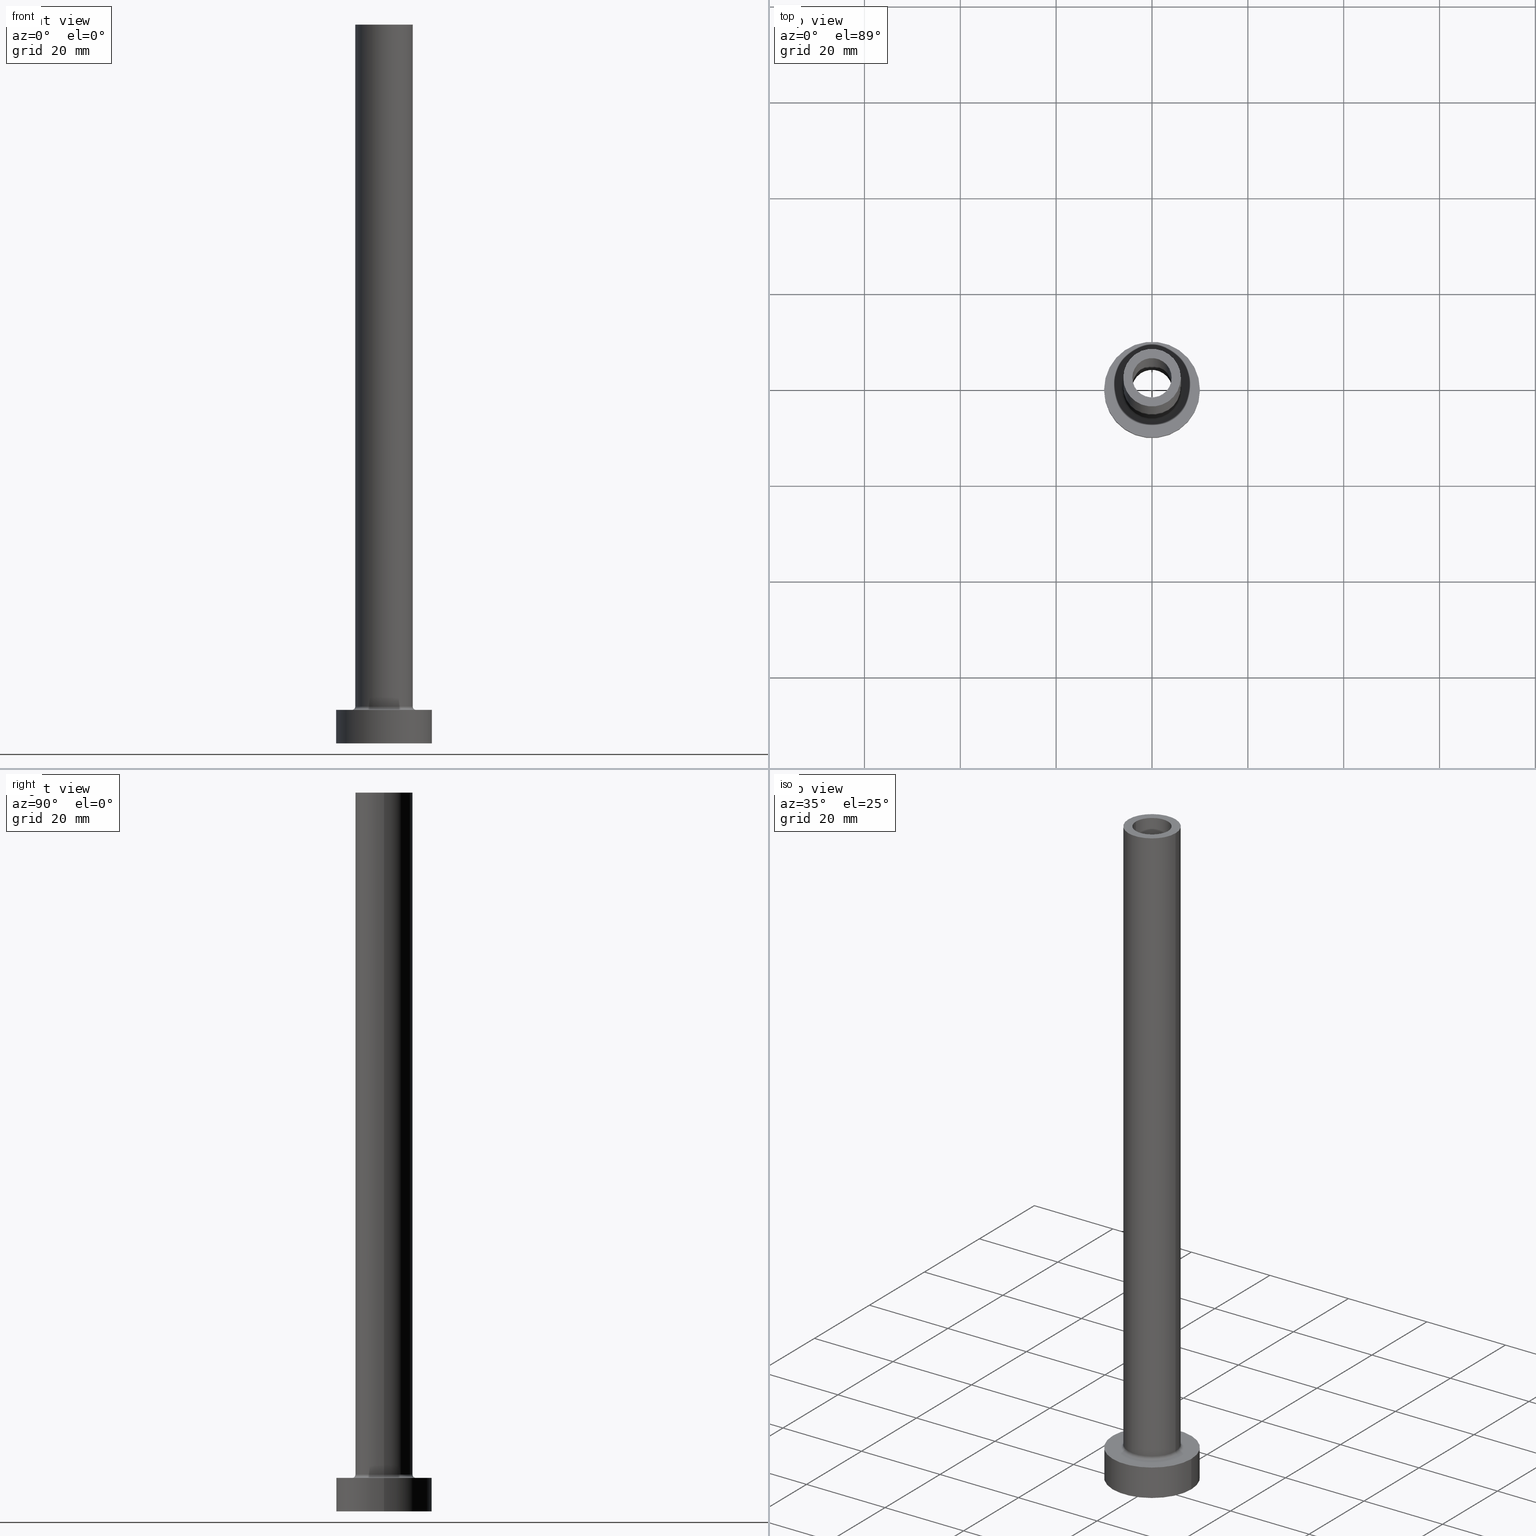
[diagram: canonical four-view strip — front | top / right | iso, engineering-drawing reading convention]
A machine part, canonical four-view strip (front | top / right | iso — engineering-drawing reading convention). The complete STEP part file that produces these views, byte-faithful:
ISO-10303-21;
HEADER;
FILE_DESCRIPTION (( 'STEP AP203' ),
    '1' );
FILE_NAME ('fa8f.STEP',
    '2023-02-13T07:41:35',
    ( '' ),
    ( '' ),
    'SwSTEP 2.0',
    'SolidWorks 2019',
    '' );
FILE_SCHEMA (( 'CONFIG_CONTROL_DESIGN' ));
ENDSEC;

DATA;
#1 = CARTESIAN_POINT ( 'NONE',  ( 10.00000000000000000, 1.224646799147353256E-15, 7.000000000000000000 ) ) ;
#2 = DIRECTION ( 'NONE',  ( -1.000000000000000000, 0.000000000000000000, 0.000000000000000000 ) ) ;
#3 = DIRECTION ( 'NONE',  ( 1.224646799147353207E-16, 1.000000000000000000, -0.000000000000000000 ) ) ;
#4 = AXIS2_PLACEMENT_3D ( 'NONE', #75, #145, #363 ) ;
#5 = DIRECTION ( 'NONE',  ( 1.000000000000000000, 0.000000000000000000, 0.000000000000000000 ) ) ;
#6 = CARTESIAN_POINT ( 'NONE',  ( 4.250000000000000000, 5.204748896376250699E-16, 105.0000000000000000 ) ) ;
#7 = DIRECTION ( 'NONE',  ( 1.000000000000000000, 0.000000000000000000, 0.000000000000000000 ) ) ;
#8 = APPLICATION_CONTEXT ( 'configuration controlled 3d designs of mechanical parts and assemblies' ) ;
#9 = PERSON_AND_ORGANIZATION ( #304, #234 ) ;
#10 = ORIENTED_EDGE ( 'NONE', *, *, #374, .T. ) ;
#11 = COORDINATED_UNIVERSAL_TIME_OFFSET ( 1, 0, .AHEAD. ) ;
#12 = ORIENTED_EDGE ( 'NONE', *, *, #27, .T. ) ;
#13 = ADVANCED_FACE ( 'NONE', ( #167 ), #26, .T. ) ;
#14 = AXIS2_PLACEMENT_3D ( 'NONE', #224, #112, #7 ) ;
#15 = CC_DESIGN_SECURITY_CLASSIFICATION ( #146, ( #418 ) ) ;
#16 = EDGE_LOOP ( 'NONE', ( #342, #253, #54, #29 ) ) ;
#17 = EDGE_LOOP ( 'NONE', ( #98, #190 ) ) ;
#18 = PRODUCT_RELATED_PRODUCT_CATEGORY ( 'detail', '', ( #295 ) ) ;
#19 = EDGE_LOOP ( 'NONE', ( #315, #90, #407, #353 ) ) ;
#20 = CIRCLE ( 'NONE', #383, 4.250000000000000000 ) ;
#21 = APPLICATION_PROTOCOL_DEFINITION ( 'international standard', 'config_control_design', 1994, #8 ) ;
#22 = CIRCLE ( 'NONE', #43, 4.250000000000000000 ) ;
#23 = DIRECTION ( 'NONE',  ( 1.000000000000000000, 0.000000000000000000, 0.000000000000000000 ) ) ;
#24 = CALENDAR_DATE ( 2023, 13, 2 ) ;
#25 = EDGE_LOOP ( 'NONE', ( #222, #219, #170, #88 ) ) ;
#26 = CYLINDRICAL_SURFACE ( 'NONE', #69, 6.000000000000000888 ) ;
#27 = EDGE_CURVE ( 'NONE', #421, #305, #89, .T. ) ;
#28 = SECURITY_CLASSIFICATION_LEVEL ( 'unclassified' ) ;
#29 = ORIENTED_EDGE ( 'NONE', *, *, #451, .F. ) ;
#30 = LOCAL_TIME ( 8, 41, 35.00000000000000000, #240 ) ;
#31 = CARTESIAN_POINT ( 'NONE',  ( 0.000000000000000000, 0.000000000000000000, 105.0000000000000000 ) ) ;
#32 = PLANE ( 'NONE',  #4 ) ;
#33 = APPROVAL ( #166, 'NEUR�EN�' ) ;
#34 = CARTESIAN_POINT ( 'NONE',  ( 0.000000000000000000, 0.000000000000000000, 117.0208152801713197 ) ) ;
#35 = CARTESIAN_POINT ( 'NONE',  ( 0.000000000000000000, 0.000000000000000000, 105.0000000000000000 ) ) ;
#36 = DIRECTION ( 'NONE',  ( -1.000000000000000000, 0.000000000000000000, 0.000000000000000000 ) ) ;
#37 = DIRECTION ( 'NONE',  ( 0.000000000000000000, 0.000000000000000000, 1.000000000000000000 ) ) ;
#38 = CYLINDRICAL_SURFACE ( 'NONE', #257, 10.00000000000000000 ) ;
#39 = DIRECTION ( 'NONE',  ( 1.000000000000000000, 0.000000000000000000, 0.000000000000000000 ) ) ;
#40 = EDGE_CURVE ( 'NONE', #256, #225, #338, .T. ) ;
#41 = DIRECTION ( 'NONE',  ( 0.000000000000000000, 0.000000000000000000, 1.000000000000000000 ) ) ;
#42 = CARTESIAN_POINT ( 'NONE',  ( 10.00000000000000000, 1.224646799147353256E-15, 7.000000000000000000 ) ) ;
#43 = AXIS2_PLACEMENT_3D ( 'NONE', #250, #300, #258 ) ;
#44 = DIRECTION ( 'NONE',  ( 0.000000000000000000, 0.000000000000000000, -1.000000000000000000 ) ) ;
#45 = DIRECTION ( 'NONE',  ( -0.000000000000000000, -0.000000000000000000, -1.000000000000000000 ) ) ;
#46 = EDGE_LOOP ( 'NONE', ( #440, #452 ) ) ;
#47 = EDGE_CURVE ( 'NONE', #122, #294, #133, .T. ) ;
#48 = DESIGN_CONTEXT ( 'detailed design', #8, 'design' ) ;
#49 = EDGE_LOOP ( 'NONE', ( #119, #134 ) ) ;
#50 = APPROVAL_PERSON_ORGANIZATION ( #307, #422, #415 ) ;
#51 = ORIENTED_EDGE ( 'NONE', *, *, #391, .T. ) ;
#52 = ADVANCED_BREP_SHAPE_REPRESENTATION ( 'fa8f', ( #281, #169 ), #247 ) ;
#53 = EDGE_CURVE ( 'NONE', #256, #277, #445, .T. ) ;
#54 = ORIENTED_EDGE ( 'NONE', *, *, #142, .T. ) ;
#55 = PERSON_AND_ORGANIZATION_ROLE ( 'design_owner' ) ;
#56 = ORIENTED_EDGE ( 'NONE', *, *, #410, .F. ) ;
#57 = AXIS2_PLACEMENT_3D ( 'NONE', #388, #206, #454 ) ;
#58 = AXIS2_PLACEMENT_3D ( 'NONE', #214, #364, #39 ) ;
#59 = CIRCLE ( 'NONE', #72, 6.700000000000001066 ) ;
#60 = SHAPE_DEFINITION_REPRESENTATION ( #221, #52 ) ;
#61 = ORIENTED_EDGE ( 'NONE', *, *, #348, .T. ) ;
#62 = EDGE_CURVE ( 'NONE', #294, #121, #20, .T. ) ;
#63 = CARTESIAN_POINT ( 'NONE',  ( 0.000000000000000000, 0.000000000000000000, 0.000000000000000000 ) ) ;
#64 = DIRECTION ( 'NONE',  ( 0.000000000000000000, 0.000000000000000000, -1.000000000000000000 ) ) ;
#65 = AXIS2_PLACEMENT_3D ( 'NONE', #393, #44, #335 ) ;
#66 = CARTESIAN_POINT ( 'NONE',  ( 6.000000000000000888, 7.347880794884120722E-16, 150.0000000000000000 ) ) ;
#67 = CALENDAR_DATE ( 2023, 13, 2 ) ;
#68 = FACE_OUTER_BOUND ( 'NONE', #438, .T. ) ;
#69 = AXIS2_PLACEMENT_3D ( 'NONE', #164, #161, #345 ) ;
#70 = DIRECTION ( 'NONE',  ( -0.000000000000000000, -0.000000000000000000, -1.000000000000000000 ) ) ;
#71 = CARTESIAN_POINT ( 'NONE',  ( 0.000000000000000000, 0.000000000000000000, 0.000000000000000000 ) ) ;
#72 = AXIS2_PLACEMENT_3D ( 'NONE', #107, #254, #429 ) ;
#73 = DIRECTION ( 'NONE',  ( 0.000000000000000000, 0.000000000000000000, 1.000000000000000000 ) ) ;
#74 = APPROVAL_PERSON_ORGANIZATION ( #196, #33, #163 ) ;
#75 = CARTESIAN_POINT ( 'NONE',  ( 0.000000000000000000, 0.000000000000000000, 105.0000000000000000 ) ) ;
#76 = CARTESIAN_POINT ( 'NONE',  ( 0.000000000000000000, 0.000000000000000000, 150.0000000000000000 ) ) ;
#77 =( NAMED_UNIT ( * ) SI_UNIT ( $, .STERADIAN. ) SOLID_ANGLE_UNIT ( ) );
#78 = EDGE_CURVE ( 'NONE', #225, #256, #232, .T. ) ;
#79 = DIRECTION ( 'NONE',  ( -1.000000000000000000, 0.000000000000000000, 0.000000000000000000 ) ) ;
#80 = LINE ( 'NONE', #1, #457 ) ;
#81 = DIRECTION ( 'NONE',  ( 1.000000000000000000, 0.000000000000000000, 0.000000000000000000 ) ) ;
#82 = FACE_OUTER_BOUND ( 'NONE', #25, .T. ) ;
#83 = CIRCLE ( 'NONE', #194, 10.00000000000000000 ) ;
#84 = ORIENTED_EDGE ( 'NONE', *, *, #451, .T. ) ;
#85 = AXIS2_PLACEMENT_3D ( 'NONE', #267, #45, #143 ) ;
#86 = EDGE_CURVE ( 'NONE', #341, #160, #83, .T. ) ;
#87 = EDGE_LOOP ( 'NONE', ( #261, #56 ) ) ;
#88 = ORIENTED_EDGE ( 'NONE', *, *, #265, .F. ) ;
#89 = CIRCLE ( 'NONE', #144, 10.00000000000000000 ) ;
#90 = ORIENTED_EDGE ( 'NONE', *, *, #78, .T. ) ;
#91 = AXIS2_PLACEMENT_3D ( 'NONE', #76, #432, #111 ) ;
#92 = VERTEX_POINT ( 'NONE', #416 ) ;
#93 = ORIENTED_EDGE ( 'NONE', *, *, #311, .T. ) ;
#94 = ORIENTED_EDGE ( 'NONE', *, *, #290, .F. ) ;
#95 = ADVANCED_FACE ( 'NONE', ( #233 ), #357, .F. ) ;
#96 = APPROVAL_DATE_TIME ( #271, #33 ) ;
#97 = ORIENTED_EDGE ( 'NONE', *, *, #368, .F. ) ;
#98 = ORIENTED_EDGE ( 'NONE', *, *, #40, .F. ) ;
#99 = EDGE_LOOP ( 'NONE', ( #51, #413, #116, #193 ) ) ;
#100 = APPROVAL_ROLE ( '' ) ;
#101 = CC_DESIGN_DATE_AND_TIME_ASSIGNMENT ( #279, #420, ( #146 ) ) ;
#102 = PLANE ( 'NONE',  #139 ) ;
#103 = CC_DESIGN_APPROVAL ( #422, ( #129 ) ) ;
#104 = DIRECTION ( 'NONE',  ( 1.000000000000000000, 0.000000000000000000, 0.000000000000000000 ) ) ;
#105 = DIRECTION ( 'NONE',  ( 0.000000000000000000, 0.000000000000000000, 1.000000000000000000 ) ) ;
#106 = CARTESIAN_POINT ( 'NONE',  ( 0.000000000000000000, 0.000000000000000000, 150.0000000000000000 ) ) ;
#107 = CARTESIAN_POINT ( 'NONE',  ( 0.000000000000000000, 0.000000000000000000, 7.000000000000000000 ) ) ;
#108 = AXIS2_PLACEMENT_3D ( 'NONE', #34, #426, #430 ) ;
#109 = FACE_OUTER_BOUND ( 'NONE', #204, .T. ) ;
#110 = CIRCLE ( 'NONE', #372, 6.700000000000001066 ) ;
#111 = DIRECTION ( 'NONE',  ( 1.000000000000000000, 0.000000000000000000, 0.000000000000000000 ) ) ;
#112 = DIRECTION ( 'NONE',  ( 0.000000000000000000, 0.000000000000000000, 1.000000000000000000 ) ) ;
#113 = CARTESIAN_POINT ( 'NONE',  ( 4.250000000000000000, 5.204748896376250699E-16, 0.000000000000000000 ) ) ;
#114 = FACE_BOUND ( 'NONE', #49, .T. ) ;
#115 = MECHANICAL_CONTEXT ( 'NONE', #301, 'mechanical' ) ;
#116 = ORIENTED_EDGE ( 'NONE', *, *, #414, .T. ) ;
#117 = DIRECTION ( 'NONE',  ( 1.000000000000000000, 0.000000000000000000, 0.000000000000000000 ) ) ;
#118 = ADVANCED_FACE ( 'NONE', ( #347 ), #210, .F. ) ;
#119 = ORIENTED_EDGE ( 'NONE', *, *, #62, .F. ) ;
#120 = VECTOR ( 'NONE', #460, 1000.000000000000000 ) ;
#121 = VERTEX_POINT ( 'NONE', #113 ) ;
#122 = VERTEX_POINT ( 'NONE', #251 ) ;
#123 = VECTOR ( 'NONE', #275, 1000.000000000000000 ) ;
#124 = ORIENTED_EDGE ( 'NONE', *, *, #184, .F. ) ;
#125 = ADVANCED_FACE ( 'NONE', ( #461 ), #423, .F. ) ;
#126 = VECTOR ( 'NONE', #283, 1000.000000000000000 ) ;
#127 = DIRECTION ( 'NONE',  ( 0.000000000000000000, 0.000000000000000000, 1.000000000000000000 ) ) ;
#128 = DIRECTION ( 'NONE',  ( 1.000000000000000000, 0.000000000000000000, 0.000000000000000000 ) ) ;
#129 = PRODUCT_DEFINITION ( 'NEZN�M�', '', #418, #48 ) ;
#130 = CALENDAR_DATE ( 2023, 13, 2 ) ;
#131 = DIRECTION ( 'NONE',  ( 1.000000000000000000, 0.000000000000000000, 0.000000000000000000 ) ) ;
#132 = AXIS2_PLACEMENT_3D ( 'NONE', #328, #41, #5 ) ;
#133 = LINE ( 'NONE', #272, #350 ) ;
#134 = ORIENTED_EDGE ( 'NONE', *, *, #414, .F. ) ;
#135 = ADVANCED_FACE ( 'NONE', ( #453 ), #198, .F. ) ;
#136 = FACE_BOUND ( 'NONE', #229, .T. ) ;
#137 = PERSON_AND_ORGANIZATION ( #304, #234 ) ;
#138 = CARTESIAN_POINT ( 'NONE',  ( 0.000000000000000000, 0.000000000000000000, 7.700000000000012612 ) ) ;
#139 = AXIS2_PLACEMENT_3D ( 'NONE', #141, #213, #280 ) ;
#140 = PERSON_AND_ORGANIZATION_ROLE ( 'creator' ) ;
#141 = CARTESIAN_POINT ( 'NONE',  ( 0.000000000000000000, 0.000000000000000000, 7.000000000000000000 ) ) ;
#142 = EDGE_CURVE ( 'NONE', #408, #381, #455, .T. ) ;
#143 = DIRECTION ( 'NONE',  ( -1.000000000000000000, 0.000000000000000000, 0.000000000000000000 ) ) ;
#144 = AXIS2_PLACEMENT_3D ( 'NONE', #384, #419, #23 ) ;
#145 = DIRECTION ( 'NONE',  ( 0.000000000000000000, 0.000000000000000000, 1.000000000000000000 ) ) ;
#146 = SECURITY_CLASSIFICATION ( '', '', #28 ) ;
#147 = DIRECTION ( 'NONE',  ( -1.000000000000000000, 1.224646799147353454E-16, 0.000000000000000000 ) ) ;
#148 = LINE ( 'NONE', #365, #313 ) ;
#149 = LINE ( 'NONE', #322, #120 ) ;
#150 = CARTESIAN_POINT ( 'NONE',  ( 0.000000000000000000, 0.000000000000000000, 150.0000000000000000 ) ) ;
#151 = APPROVAL_STATUS ( 'not_yet_approved' ) ;
#152 = EDGE_LOOP ( 'NONE', ( #375, #97, #159, #10 ) ) ;
#153 = CYLINDRICAL_SURFACE ( 'NONE', #85, 6.000000000000000888 ) ;
#154 = CLOSED_SHELL ( 'NONE', ( #125, #118, #135, #282, #165, #203, #226, #382, #13, #458, #95, #176, #237, #303 ) ) ;
#155 = CALENDAR_DATE ( 2023, 13, 2 ) ;
#156 = VERTEX_POINT ( 'NONE', #285 ) ;
#157 = APPLICATION_PROTOCOL_DEFINITION ( 'international standard', 'config_control_design', 1994, #301 ) ;
#158 = LOCAL_TIME ( 8, 41, 35.00000000000000000, #11 ) ;
#159 = ORIENTED_EDGE ( 'NONE', *, *, #265, .T. ) ;
#160 = VERTEX_POINT ( 'NONE', #400 ) ;
#161 = DIRECTION ( 'NONE',  ( -0.000000000000000000, -0.000000000000000000, -1.000000000000000000 ) ) ;
#162 = AXIS2_PLACEMENT_3D ( 'NONE', #181, #177, #79 ) ;
#163 = APPROVAL_ROLE ( '' ) ;
#164 = CARTESIAN_POINT ( 'NONE',  ( 0.000000000000000000, 0.000000000000000000, 150.0000000000000000 ) ) ;
#165 = ADVANCED_FACE ( 'NONE', ( #109 ), #38, .T. ) ;
#166 = APPROVAL_STATUS ( 'not_yet_approved' ) ;
#167 = FACE_OUTER_BOUND ( 'NONE', #152, .T. ) ;
#168 = ORIENTED_EDGE ( 'NONE', *, *, #334, .F. ) ;
#169 = AXIS2_PLACEMENT_3D ( 'NONE', #405, #183, #292 ) ;
#170 = ORIENTED_EDGE ( 'NONE', *, *, #435, .T. ) ;
#171 = FACE_OUTER_BOUND ( 'NONE', #380, .T. ) ;
#172 = CARTESIAN_POINT ( 'NONE',  ( -4.099999999999999645, 0.000000000000000000, 150.0000000000000000 ) ) ;
#173 = PERSON_AND_ORGANIZATION ( #304, #234 ) ;
#174 = DIRECTION ( 'NONE',  ( -0.000000000000000000, -0.000000000000000000, -1.000000000000000000 ) ) ;
#175 = DIRECTION ( 'NONE',  ( 1.000000000000000000, 0.000000000000000000, 0.000000000000000000 ) ) ;
#176 = ADVANCED_FACE ( 'NONE', ( #68 ), #207, .F. ) ;
#177 = DIRECTION ( 'NONE',  ( 0.000000000000000000, 0.000000000000000000, -1.000000000000000000 ) ) ;
#178 = DIRECTION ( 'NONE',  ( 1.000000000000000000, 0.000000000000000000, 0.000000000000000000 ) ) ;
#179 = LINE ( 'NONE', #212, #450 ) ;
#180 = DIRECTION ( 'NONE',  ( -0.000000000000000000, -0.000000000000000000, -1.000000000000000000 ) ) ;
#181 = CARTESIAN_POINT ( 'NONE',  ( 0.000000000000000000, 0.000000000000000000, 117.0208152801713197 ) ) ;
#182 = CARTESIAN_POINT ( 'NONE',  ( -6.000000000000000888, 0.000000000000000000, 150.0000000000000000 ) ) ;
#183 = DIRECTION ( 'NONE',  ( 0.000000000000000000, 0.000000000000000000, 1.000000000000000000 ) ) ;
#184 = EDGE_CURVE ( 'NONE', #371, #121, #323, .T. ) ;
#185 = DIRECTION ( 'NONE',  ( -0.000000000000000000, -0.000000000000000000, -1.000000000000000000 ) ) ;
#186 = CIRCLE ( 'NONE', #241, 4.250000000000000000 ) ;
#187 = DIRECTION ( 'NONE',  ( 1.000000000000000000, 0.000000000000000000, 0.000000000000000000 ) ) ;
#188 = FACE_BOUND ( 'NONE', #17, .T. ) ;
#189 = ORIENTED_EDGE ( 'NONE', *, *, #86, .T. ) ;
#190 = ORIENTED_EDGE ( 'NONE', *, *, #78, .F. ) ;
#191 = AXIS2_PLACEMENT_3D ( 'NONE', #71, #211, #361 ) ;
#192 = CC_DESIGN_PERSON_AND_ORGANIZATION_ASSIGNMENT ( #137, #316, ( #418 ) ) ;
#193 = ORIENTED_EDGE ( 'NONE', *, *, #47, .F. ) ;
#194 = AXIS2_PLACEMENT_3D ( 'NONE', #376, #378, #269 ) ;
#195 = EDGE_CURVE ( 'NONE', #403, #277, #346, .T. ) ;
#196 = PERSON_AND_ORGANIZATION ( #304, #234 ) ;
#197 = AXIS2_PLACEMENT_3D ( 'NONE', #138, #289, #434 ) ;
#198 = TOROIDAL_SURFACE ( 'NONE', #197, 6.700000000000001066, 0.6999999999999999556 ) ;
#199 = AXIS2_PLACEMENT_3D ( 'NONE', #291, #37, #325 ) ;
#200 = CARTESIAN_POINT ( 'NONE',  ( -4.099999999999999645, 0.000000000000000000, 150.0000000000000000 ) ) ;
#201 = ORIENTED_EDGE ( 'NONE', *, *, #334, .T. ) ;
#202 = DIRECTION ( 'NONE',  ( -0.000000000000000000, -0.000000000000000000, -1.000000000000000000 ) ) ;
#203 = ADVANCED_FACE ( 'NONE', ( #171 ), #358, .T. ) ;
#204 = EDGE_LOOP ( 'NONE', ( #447, #227, #61, #168 ) ) ;
#205 = DATE_AND_TIME ( #385, #30 ) ;
#206 = DIRECTION ( 'NONE',  ( 0.000000000000000000, -1.000000000000000000, 0.000000000000000000 ) ) ;
#207 = CYLINDRICAL_SURFACE ( 'NONE', #162, 4.250000000000000000 ) ;
#208 = EDGE_CURVE ( 'NONE', #156, #408, #317, .T. ) ;
#209 = CIRCLE ( 'NONE', #273, 10.00000000000000000 ) ;
#210 = CYLINDRICAL_SURFACE ( 'NONE', #108, 4.250000000000000000 ) ;
#211 = DIRECTION ( 'NONE',  ( 0.000000000000000000, 0.000000000000000000, 1.000000000000000000 ) ) ;
#212 = CARTESIAN_POINT ( 'NONE',  ( -10.00000000000000000, 0.000000000000000000, 7.000000000000000000 ) ) ;
#213 = DIRECTION ( 'NONE',  ( 0.000000000000000000, 0.000000000000000000, 1.000000000000000000 ) ) ;
#214 = CARTESIAN_POINT ( 'NONE',  ( 0.000000000000000000, 0.000000000000000000, 7.700000000000012612 ) ) ;
#215 = CC_DESIGN_PERSON_AND_ORGANIZATION_ASSIGNMENT ( #314, #276, ( #146 ) ) ;
#216 = CARTESIAN_POINT ( 'NONE',  ( 4.250000000000000000, 5.204748896376250699E-16, 117.0208152801713197 ) ) ;
#217 = CARTESIAN_POINT ( 'NONE',  ( 0.000000000000000000, 0.000000000000000000, 0.000000000000000000 ) ) ;
#218 = DIRECTION ( 'NONE',  ( 0.000000000000000000, 0.000000000000000000, 1.000000000000000000 ) ) ;
#219 = ORIENTED_EDGE ( 'NONE', *, *, #208, .T. ) ;
#220 = AXIS2_PLACEMENT_3D ( 'NONE', #396, #174, #390 ) ;
#221 = PRODUCT_DEFINITION_SHAPE ( 'NONE', 'NONE',  #129 ) ;
#222 = ORIENTED_EDGE ( 'NONE', *, *, #259, .F. ) ;
#223 = UNCERTAINTY_MEASURE_WITH_UNIT (LENGTH_MEASURE( 1.000000000000000082E-05 ), #326, 'distance_accuracy_value', 'NONE');
#224 = CARTESIAN_POINT ( 'NONE',  ( 0.000000000000000000, 0.000000000000000000, 7.700000000000012612 ) ) ;
#225 = VERTEX_POINT ( 'NONE', #321 ) ;
#226 = ADVANCED_FACE ( 'NONE', ( #136, #459 ), #102, .T. ) ;
#227 = ORIENTED_EDGE ( 'NONE', *, *, #290, .T. ) ;
#228 = APPROVAL_PERSON_ORGANIZATION ( #9, #427, #100 ) ;
#229 = EDGE_LOOP ( 'NONE', ( #231, #84 ) ) ;
#230 = PERSON_AND_ORGANIZATION ( #304, #234 ) ;
#231 = ORIENTED_EDGE ( 'NONE', *, *, #297, .T. ) ;
#232 = CIRCLE ( 'NONE', #448, 4.099999999999999645 ) ;
#233 = FACE_OUTER_BOUND ( 'NONE', #16, .T. ) ;
#234 = ORGANIZATION ( 'NEUR�EN�', 'NEUR�EN�', '' ) ;
#235 = EDGE_LOOP ( 'NONE', ( #337, #409, #239, #302 ) ) ;
#236 = CARTESIAN_POINT ( 'NONE',  ( 0.000000000000000000, 0.000000000000000000, 150.0000000000000000 ) ) ;
#237 = ADVANCED_FACE ( 'NONE', ( #428, #355 ), #32, .F. ) ;
#238 = COORDINATED_UNIVERSAL_TIME_OFFSET ( 1, 0, .AHEAD. ) ;
#239 = ORIENTED_EDGE ( 'NONE', *, *, #311, .F. ) ;
#240 = COORDINATED_UNIVERSAL_TIME_OFFSET ( 1, 0, .AHEAD. ) ;
#241 = AXIS2_PLACEMENT_3D ( 'NONE', #397, #431, #178 ) ;
#242 = DIRECTION ( 'NONE',  ( 1.000000000000000000, 0.000000000000000000, 0.000000000000000000 ) ) ;
#243 = DIRECTION ( 'NONE',  ( 0.000000000000000000, 0.000000000000000000, -1.000000000000000000 ) ) ;
#244 = APPROVAL_DATE_TIME ( #260, #422 ) ;
#245 = CARTESIAN_POINT ( 'NONE',  ( -4.250000000000000000, 0.000000000000000000, 0.000000000000000000 ) ) ;
#246 = PLANE ( 'NONE',  #379 ) ;
#247 =( GEOMETRIC_REPRESENTATION_CONTEXT ( 3 ) GLOBAL_UNCERTAINTY_ASSIGNED_CONTEXT ( ( #223 ) ) GLOBAL_UNIT_ASSIGNED_CONTEXT ( ( #326, #339, #77 ) ) REPRESENTATION_CONTEXT ( 'NONE', 'WORKASPACE' ) );
#248 = DIRECTION ( 'NONE',  ( -0.000000000000000000, -0.000000000000000000, -1.000000000000000000 ) ) ;
#249 = DIRECTION ( 'NONE',  ( -0.000000000000000000, -0.000000000000000000, -1.000000000000000000 ) ) ;
#250 = CARTESIAN_POINT ( 'NONE',  ( 0.000000000000000000, 0.000000000000000000, 0.000000000000000000 ) ) ;
#251 = CARTESIAN_POINT ( 'NONE',  ( -4.250000000000000000, 0.000000000000000000, 105.0000000000000000 ) ) ;
#252 = FACE_OUTER_BOUND ( 'NONE', #46, .T. ) ;
#253 = ORIENTED_EDGE ( 'NONE', *, *, #435, .F. ) ;
#254 = DIRECTION ( 'NONE',  ( -0.000000000000000000, -0.000000000000000000, -1.000000000000000000 ) ) ;
#255 = CIRCLE ( 'NONE', #91, 6.000000000000000888 ) ;
#256 = VERTEX_POINT ( 'NONE', #172 ) ;
#257 = AXIS2_PLACEMENT_3D ( 'NONE', #360, #248, #36 ) ;
#258 = DIRECTION ( 'NONE',  ( 1.000000000000000000, 0.000000000000000000, 0.000000000000000000 ) ) ;
#259 = EDGE_CURVE ( 'NONE', #156, #349, #264, .T. ) ;
#260 = DATE_AND_TIME ( #155, #158 ) ;
#261 = ORIENTED_EDGE ( 'NONE', *, *, #391, .F. ) ;
#262 = EDGE_LOOP ( 'NONE', ( #93, #369 ) ) ;
#263 = VERTEX_POINT ( 'NONE', #330 ) ;
#264 = CIRCLE ( 'NONE', #132, 6.000000000000000888 ) ;
#265 = EDGE_CURVE ( 'NONE', #349, #263, #148, .T. ) ;
#266 = ORIENTED_EDGE ( 'NONE', *, *, #142, .F. ) ;
#267 = CARTESIAN_POINT ( 'NONE',  ( 0.000000000000000000, 0.000000000000000000, 150.0000000000000000 ) ) ;
#268 = APPROVAL_STATUS ( 'not_yet_approved' ) ;
#269 = DIRECTION ( 'NONE',  ( 1.000000000000000000, 0.000000000000000000, 0.000000000000000000 ) ) ;
#270 = AXIS2_PLACEMENT_3D ( 'NONE', #286, #387, #104 ) ;
#271 = DATE_AND_TIME ( #130, #425 ) ;
#272 = CARTESIAN_POINT ( 'NONE',  ( -4.250000000000000000, 0.000000000000000000, 117.0208152801713197 ) ) ;
#273 = AXIS2_PLACEMENT_3D ( 'NONE', #217, #398, #187 ) ;
#274 = CC_DESIGN_PERSON_AND_ORGANIZATION_ASSIGNMENT ( #392, #284, ( #129 ) ) ;
#275 = DIRECTION ( 'NONE',  ( 0.000000000000000000, 0.000000000000000000, -1.000000000000000000 ) ) ;
#276 = PERSON_AND_ORGANIZATION_ROLE ( 'classification_officer' ) ;
#277 = VERTEX_POINT ( 'NONE', #402 ) ;
#278 = COORDINATED_UNIVERSAL_TIME_OFFSET ( 1, 0, .AHEAD. ) ;
#279 = DATE_AND_TIME ( #24, #412 ) ;
#280 = DIRECTION ( 'NONE',  ( 1.000000000000000000, 0.000000000000000000, -0.000000000000000000 ) ) ;
#281 = MANIFOLD_SOLID_BREP ( 'Odebrat vysunut�m4', #154 ) ;
#282 = ADVANCED_FACE ( 'NONE', ( #82 ), #153, .T. ) ;
#283 = DIRECTION ( 'NONE',  ( 0.000000000000000000, 0.000000000000000000, -1.000000000000000000 ) ) ;
#284 = PERSON_AND_ORGANIZATION_ROLE ( 'creator' ) ;
#285 = CARTESIAN_POINT ( 'NONE',  ( 6.000000000000000888, 7.347880794884120722E-16, 150.0000000000000000 ) ) ;
#286 = CARTESIAN_POINT ( 'NONE',  ( 0.000000000000000000, 0.000000000000000000, 7.700000000000012612 ) ) ;
#287 = DIRECTION ( 'NONE',  ( -0.000000000000000000, -0.000000000000000000, -1.000000000000000000 ) ) ;
#288 = CC_DESIGN_APPROVAL ( #427, ( #418 ) ) ;
#289 = DIRECTION ( 'NONE',  ( 0.000000000000000000, 0.000000000000000000, 1.000000000000000000 ) ) ;
#290 = EDGE_CURVE ( 'NONE', #341, #305, #80, .T. ) ;
#291 = CARTESIAN_POINT ( 'NONE',  ( 0.000000000000000000, 0.000000000000000000, 7.000000000000000000 ) ) ;
#292 = DIRECTION ( 'NONE',  ( 1.000000000000000000, 0.000000000000000000, 0.000000000000000000 ) ) ;
#293 = EDGE_LOOP ( 'NONE', ( #333, #449, #373, #266 ) ) ;
#294 = VERTEX_POINT ( 'NONE', #245 ) ;
#295 = PRODUCT ( 'fa8f', 'fa8f', '', ( #115 ) ) ;
#296 = CYLINDRICAL_SURFACE ( 'NONE', #65, 4.099999999999999645 ) ;
#297 = EDGE_CURVE ( 'NONE', #381, #92, #59, .T. ) ;
#298 = CIRCLE ( 'NONE', #306, 0.7000000000000000666 ) ;
#299 = ORIENTED_EDGE ( 'NONE', *, *, #368, .T. ) ;
#300 = DIRECTION ( 'NONE',  ( -0.000000000000000000, -0.000000000000000000, -1.000000000000000000 ) ) ;
#301 = APPLICATION_CONTEXT ( 'configuration controlled 3d designs of mechanical parts and assemblies' ) ;
#302 = ORIENTED_EDGE ( 'NONE', *, *, #53, .F. ) ;
#303 = ADVANCED_FACE ( 'NONE', ( #404 ), #296, .F. ) ;
#304 = PERSON ( 'NEUR�EN�', 'NEUR�EN�', 'NEUR�EN�', ('NEUR�EN�'), ('NEUR�EN�'), ('NEUR�EN�') ) ;
#305 = VERTEX_POINT ( 'NONE', #359 ) ;
#306 = AXIS2_PLACEMENT_3D ( 'NONE', #329, #3, #147 ) ;
#307 = PERSON_AND_ORGANIZATION ( #304, #234 ) ;
#308 = ORIENTED_EDGE ( 'NONE', *, *, #362, .F. ) ;
#309 = COORDINATED_UNIVERSAL_TIME_OFFSET ( 1, 0, .AHEAD. ) ;
#310 = EDGE_LOOP ( 'NONE', ( #299, #442 ) ) ;
#311 = EDGE_CURVE ( 'NONE', #277, #403, #406, .T. ) ;
#312 = DIRECTION ( 'NONE',  ( 0.000000000000000000, 0.000000000000000000, 1.000000000000000000 ) ) ;
#313 = VECTOR ( 'NONE', #185, 1000.000000000000000 ) ;
#314 = PERSON_AND_ORGANIZATION ( #304, #234 ) ;
#315 = ORIENTED_EDGE ( 'NONE', *, *, #327, .F. ) ;
#316 = PERSON_AND_ORGANIZATION_ROLE ( 'design_supplier' ) ;
#317 = LINE ( 'NONE', #66, #386 ) ;
#318 = DIRECTION ( 'NONE',  ( 0.000000000000000000, 0.000000000000000000, 1.000000000000000000 ) ) ;
#319 = CARTESIAN_POINT ( 'NONE',  ( 6.000000000000000888, 7.347880794884120722E-16, 7.700000000000012612 ) ) ;
#320 = AXIS2_PLACEMENT_3D ( 'NONE', #389, #105, #81 ) ;
#321 = CARTESIAN_POINT ( 'NONE',  ( 4.099999999999999645, 5.021051876504146399E-16, 150.0000000000000000 ) ) ;
#322 = CARTESIAN_POINT ( 'NONE',  ( 4.099999999999999645, 5.021051876504146399E-16, 150.0000000000000000 ) ) ;
#323 = LINE ( 'NONE', #216, #126 ) ;
#324 = CARTESIAN_POINT ( 'NONE',  ( 4.099999999999999645, 5.021051876504146399E-16, 105.0000000000000000 ) ) ;
#325 = DIRECTION ( 'NONE',  ( 1.000000000000000000, 0.000000000000000000, 0.000000000000000000 ) ) ;
#326 =( LENGTH_UNIT ( ) NAMED_UNIT ( * ) SI_UNIT ( .MILLI., .METRE. ) );
#327 = EDGE_CURVE ( 'NONE', #225, #403, #149, .T. ) ;
#328 = CARTESIAN_POINT ( 'NONE',  ( 0.000000000000000000, 0.000000000000000000, 150.0000000000000000 ) ) ;
#329 = CARTESIAN_POINT ( 'NONE',  ( -6.700000000000001066, 8.205133554287267548E-16, 7.700000000000012612 ) ) ;
#330 = CARTESIAN_POINT ( 'NONE',  ( -6.000000000000000888, 0.000000000000000000, 7.700000000000012612 ) ) ;
#331 = CARTESIAN_POINT ( 'NONE',  ( -10.00000000000000000, 0.000000000000000000, 0.000000000000000000 ) ) ;
#332 = DATE_TIME_ROLE ( 'creation_date' ) ;
#333 = ORIENTED_EDGE ( 'NONE', *, *, #374, .F. ) ;
#334 = EDGE_CURVE ( 'NONE', #160, #421, #179, .T. ) ;
#335 = DIRECTION ( 'NONE',  ( -1.000000000000000000, 0.000000000000000000, 0.000000000000000000 ) ) ;
#336 = FACE_OUTER_BOUND ( 'NONE', #310, .T. ) ;
#337 = ORIENTED_EDGE ( 'NONE', *, *, #40, .T. ) ;
#338 = CIRCLE ( 'NONE', #411, 4.099999999999999645 ) ;
#339 =( NAMED_UNIT ( * ) PLANE_ANGLE_UNIT ( ) SI_UNIT ( $, .RADIAN. ) );
#340 = CIRCLE ( 'NONE', #199, 10.00000000000000000 ) ;
#341 = VERTEX_POINT ( 'NONE', #42 ) ;
#342 = ORIENTED_EDGE ( 'NONE', *, *, #377, .F. ) ;
#343 = CC_DESIGN_DATE_AND_TIME_ASSIGNMENT ( #356, #332, ( #129 ) ) ;
#344 = ORIENTED_EDGE ( 'NONE', *, *, #410, .T. ) ;
#345 = DIRECTION ( 'NONE',  ( -1.000000000000000000, 0.000000000000000000, 0.000000000000000000 ) ) ;
#346 = CIRCLE ( 'NONE', #444, 4.099999999999999645 ) ;
#347 = FACE_OUTER_BOUND ( 'NONE', #99, .T. ) ;
#348 = EDGE_CURVE ( 'NONE', #305, #421, #209, .T. ) ;
#349 = VERTEX_POINT ( 'NONE', #182 ) ;
#350 = VECTOR ( 'NONE', #64, 1000.000000000000000 ) ;
#351 = DIRECTION ( 'NONE',  ( 1.000000000000000000, 0.000000000000000000, 0.000000000000000000 ) ) ;
#352 = CC_DESIGN_PERSON_AND_ORGANIZATION_ASSIGNMENT ( #173, #140, ( #418 ) ) ;
#353 = ORIENTED_EDGE ( 'NONE', *, *, #195, .F. ) ;
#354 = APPROVAL_DATE_TIME ( #205, #427 ) ;
#355 = FACE_OUTER_BOUND ( 'NONE', #87, .T. ) ;
#356 = DATE_AND_TIME ( #67, #424 ) ;
#357 = TOROIDAL_SURFACE ( 'NONE', #270, 6.700000000000001066, 0.6999999999999999556 ) ;
#358 = CYLINDRICAL_SURFACE ( 'NONE', #220, 10.00000000000000000 ) ;
#359 = CARTESIAN_POINT ( 'NONE',  ( 10.00000000000000000, 1.224646799147353256E-15, 0.000000000000000000 ) ) ;
#360 = CARTESIAN_POINT ( 'NONE',  ( 0.000000000000000000, 0.000000000000000000, 7.000000000000000000 ) ) ;
#361 = DIRECTION ( 'NONE',  ( 1.000000000000000000, 0.000000000000000000, -0.000000000000000000 ) ) ;
#362 = EDGE_CURVE ( 'NONE', #160, #341, #340, .T. ) ;
#363 = DIRECTION ( 'NONE',  ( 1.000000000000000000, 0.000000000000000000, -0.000000000000000000 ) ) ;
#364 = DIRECTION ( 'NONE',  ( 0.000000000000000000, 0.000000000000000000, 1.000000000000000000 ) ) ;
#365 = CARTESIAN_POINT ( 'NONE',  ( -6.000000000000000888, 0.000000000000000000, 150.0000000000000000 ) ) ;
#366 = DIRECTION ( 'NONE',  ( 1.000000000000000000, 0.000000000000000000, -0.000000000000000000 ) ) ;
#367 = CIRCLE ( 'NONE', #320, 4.250000000000000000 ) ;
#368 = EDGE_CURVE ( 'NONE', #349, #156, #255, .T. ) ;
#369 = ORIENTED_EDGE ( 'NONE', *, *, #195, .T. ) ;
#370 = ORIENTED_EDGE ( 'NONE', *, *, #62, .T. ) ;
#371 = VERTEX_POINT ( 'NONE', #6 ) ;
#372 = AXIS2_PLACEMENT_3D ( 'NONE', #399, #180, #117 ) ;
#373 = ORIENTED_EDGE ( 'NONE', *, *, #297, .F. ) ;
#374 = EDGE_CURVE ( 'NONE', #263, #408, #394, .T. ) ;
#375 = ORIENTED_EDGE ( 'NONE', *, *, #208, .F. ) ;
#376 = CARTESIAN_POINT ( 'NONE',  ( 0.000000000000000000, 0.000000000000000000, 7.000000000000000000 ) ) ;
#377 = EDGE_CURVE ( 'NONE', #263, #92, #298, .T. ) ;
#378 = DIRECTION ( 'NONE',  ( 0.000000000000000000, 0.000000000000000000, 1.000000000000000000 ) ) ;
#379 = AXIS2_PLACEMENT_3D ( 'NONE', #150, #218, #366 ) ;
#380 = EDGE_LOOP ( 'NONE', ( #94, #308, #201, #12 ) ) ;
#381 = VERTEX_POINT ( 'NONE', #436 ) ;
#382 = ADVANCED_FACE ( 'NONE', ( #114, #252 ), #401, .F. ) ;
#383 = AXIS2_PLACEMENT_3D ( 'NONE', #63, #202, #351 ) ;
#384 = CARTESIAN_POINT ( 'NONE',  ( 0.000000000000000000, 0.000000000000000000, 0.000000000000000000 ) ) ;
#385 = CALENDAR_DATE ( 2023, 13, 2 ) ;
#386 = VECTOR ( 'NONE', #70, 1000.000000000000000 ) ;
#387 = DIRECTION ( 'NONE',  ( 0.000000000000000000, 0.000000000000000000, 1.000000000000000000 ) ) ;
#388 = CARTESIAN_POINT ( 'NONE',  ( 6.700000000000001066, 0.000000000000000000, 7.700000000000012612 ) ) ;
#389 = CARTESIAN_POINT ( 'NONE',  ( 0.000000000000000000, 0.000000000000000000, 105.0000000000000000 ) ) ;
#390 = DIRECTION ( 'NONE',  ( -1.000000000000000000, 0.000000000000000000, 0.000000000000000000 ) ) ;
#391 = EDGE_CURVE ( 'NONE', #122, #371, #186, .T. ) ;
#392 = PERSON_AND_ORGANIZATION ( #304, #234 ) ;
#393 = CARTESIAN_POINT ( 'NONE',  ( 0.000000000000000000, 0.000000000000000000, 150.0000000000000000 ) ) ;
#394 = CIRCLE ( 'NONE', #58, 6.000000000000000888 ) ;
#395 = CC_DESIGN_APPROVAL ( #33, ( #146 ) ) ;
#396 = CARTESIAN_POINT ( 'NONE',  ( 0.000000000000000000, 0.000000000000000000, 7.000000000000000000 ) ) ;
#397 = CARTESIAN_POINT ( 'NONE',  ( 0.000000000000000000, 0.000000000000000000, 105.0000000000000000 ) ) ;
#398 = DIRECTION ( 'NONE',  ( 0.000000000000000000, 0.000000000000000000, 1.000000000000000000 ) ) ;
#399 = CARTESIAN_POINT ( 'NONE',  ( 0.000000000000000000, 0.000000000000000000, 7.000000000000000000 ) ) ;
#400 = CARTESIAN_POINT ( 'NONE',  ( -10.00000000000000000, 0.000000000000000000, 7.000000000000000000 ) ) ;
#401 = PLANE ( 'NONE',  #191 ) ;
#402 = CARTESIAN_POINT ( 'NONE',  ( -4.099999999999999645, 0.000000000000000000, 105.0000000000000000 ) ) ;
#403 = VERTEX_POINT ( 'NONE', #324 ) ;
#404 = FACE_OUTER_BOUND ( 'NONE', #19, .T. ) ;
#405 = CARTESIAN_POINT ( 'NONE',  ( 0.000000000000000000, 0.000000000000000000, 0.000000000000000000 ) ) ;
#406 = CIRCLE ( 'NONE', #433, 4.099999999999999645 ) ;
#407 = ORIENTED_EDGE ( 'NONE', *, *, #53, .T. ) ;
#408 = VERTEX_POINT ( 'NONE', #319 ) ;
#409 = ORIENTED_EDGE ( 'NONE', *, *, #327, .T. ) ;
#410 = EDGE_CURVE ( 'NONE', #371, #122, #367, .T. ) ;
#411 = AXIS2_PLACEMENT_3D ( 'NONE', #236, #312, #131 ) ;
#412 = LOCAL_TIME ( 8, 41, 35.00000000000000000, #238 ) ;
#413 = ORIENTED_EDGE ( 'NONE', *, *, #184, .T. ) ;
#414 = EDGE_CURVE ( 'NONE', #121, #294, #22, .T. ) ;
#415 = APPROVAL_ROLE ( '' ) ;
#416 = CARTESIAN_POINT ( 'NONE',  ( -6.700000000000001066, 8.205133554287267548E-16, 7.000000000000006217 ) ) ;
#417 = ORIENTED_EDGE ( 'NONE', *, *, #362, .T. ) ;
#418 = PRODUCT_DEFINITION_FORMATION_WITH_SPECIFIED_SOURCE ( 'LIBOVOLN�', '', #295, .NOT_KNOWN. ) ;
#419 = DIRECTION ( 'NONE',  ( 0.000000000000000000, 0.000000000000000000, 1.000000000000000000 ) ) ;
#420 = DATE_TIME_ROLE ( 'classification_date' ) ;
#421 = VERTEX_POINT ( 'NONE', #331 ) ;
#422 = APPROVAL ( #268, 'NEUR�EN�' ) ;
#423 = CYLINDRICAL_SURFACE ( 'NONE', #456, 4.099999999999999645 ) ;
#424 = LOCAL_TIME ( 8, 41, 35.00000000000000000, #278 ) ;
#425 = LOCAL_TIME ( 8, 41, 35.00000000000000000, #309 ) ;
#426 = DIRECTION ( 'NONE',  ( 0.000000000000000000, 0.000000000000000000, -1.000000000000000000 ) ) ;
#427 = APPROVAL ( #151, 'NEUR�EN�' ) ;
#428 = FACE_BOUND ( 'NONE', #262, .T. ) ;
#429 = DIRECTION ( 'NONE',  ( 1.000000000000000000, 0.000000000000000000, 0.000000000000000000 ) ) ;
#430 = DIRECTION ( 'NONE',  ( -1.000000000000000000, 0.000000000000000000, 0.000000000000000000 ) ) ;
#431 = DIRECTION ( 'NONE',  ( 0.000000000000000000, 0.000000000000000000, 1.000000000000000000 ) ) ;
#432 = DIRECTION ( 'NONE',  ( 0.000000000000000000, 0.000000000000000000, 1.000000000000000000 ) ) ;
#433 = AXIS2_PLACEMENT_3D ( 'NONE', #35, #73, #175 ) ;
#434 = DIRECTION ( 'NONE',  ( 1.000000000000000000, 0.000000000000000000, 0.000000000000000000 ) ) ;
#435 = EDGE_CURVE ( 'NONE', #408, #263, #439, .T. ) ;
#436 = CARTESIAN_POINT ( 'NONE',  ( 6.700000000000001066, 0.000000000000000000, 7.000000000000006217 ) ) ;
#437 = EDGE_LOOP ( 'NONE', ( #417, #189 ) ) ;
#438 = EDGE_LOOP ( 'NONE', ( #124, #344, #443, #370 ) ) ;
#439 = CIRCLE ( 'NONE', #14, 6.000000000000000888 ) ;
#440 = ORIENTED_EDGE ( 'NONE', *, *, #27, .F. ) ;
#441 = CC_DESIGN_PERSON_AND_ORGANIZATION_ASSIGNMENT ( #230, #55, ( #295 ) ) ;
#442 = ORIENTED_EDGE ( 'NONE', *, *, #259, .T. ) ;
#443 = ORIENTED_EDGE ( 'NONE', *, *, #47, .T. ) ;
#444 = AXIS2_PLACEMENT_3D ( 'NONE', #31, #318, #242 ) ;
#445 = LINE ( 'NONE', #200, #123 ) ;
#446 = CARTESIAN_POINT ( 'NONE',  ( 0.000000000000000000, 0.000000000000000000, 150.0000000000000000 ) ) ;
#447 = ORIENTED_EDGE ( 'NONE', *, *, #86, .F. ) ;
#448 = AXIS2_PLACEMENT_3D ( 'NONE', #446, #127, #128 ) ;
#449 = ORIENTED_EDGE ( 'NONE', *, *, #377, .T. ) ;
#450 = VECTOR ( 'NONE', #287, 1000.000000000000000 ) ;
#451 = EDGE_CURVE ( 'NONE', #92, #381, #110, .T. ) ;
#452 = ORIENTED_EDGE ( 'NONE', *, *, #348, .F. ) ;
#453 = FACE_OUTER_BOUND ( 'NONE', #293, .T. ) ;
#454 = DIRECTION ( 'NONE',  ( 0.000000000000000000, 0.000000000000000000, -1.000000000000000000 ) ) ;
#455 = CIRCLE ( 'NONE', #57, 0.7000000000000000666 ) ;
#456 = AXIS2_PLACEMENT_3D ( 'NONE', #106, #243, #2 ) ;
#457 = VECTOR ( 'NONE', #249, 1000.000000000000000 ) ;
#458 = ADVANCED_FACE ( 'NONE', ( #188, #336 ), #246, .T. ) ;
#459 = FACE_OUTER_BOUND ( 'NONE', #437, .T. ) ;
#460 = DIRECTION ( 'NONE',  ( 0.000000000000000000, 0.000000000000000000, -1.000000000000000000 ) ) ;
#461 = FACE_OUTER_BOUND ( 'NONE', #235, .T. ) ;
ENDSEC;
END-ISO-10303-21;
